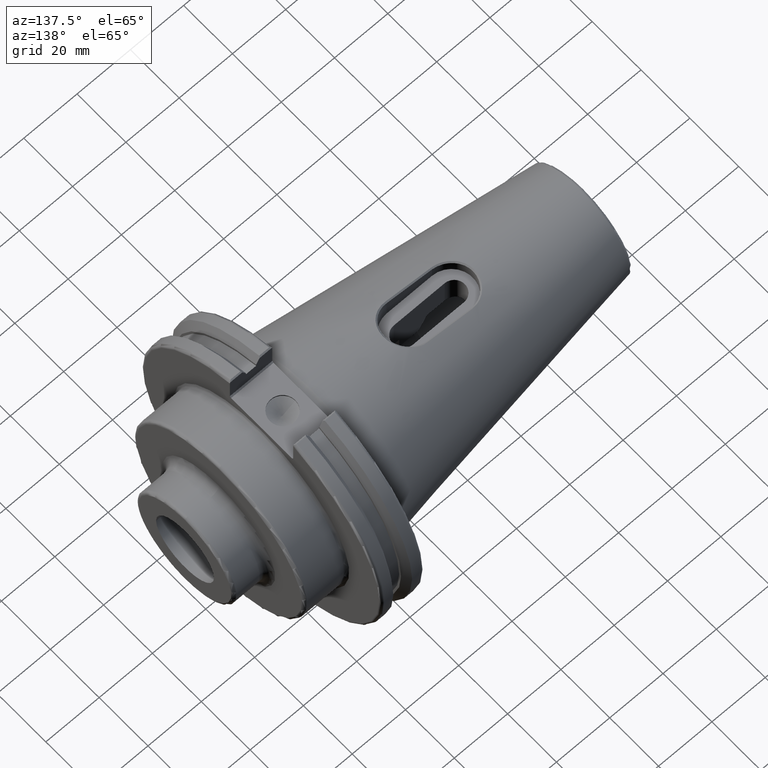
[diagram: clean part render]
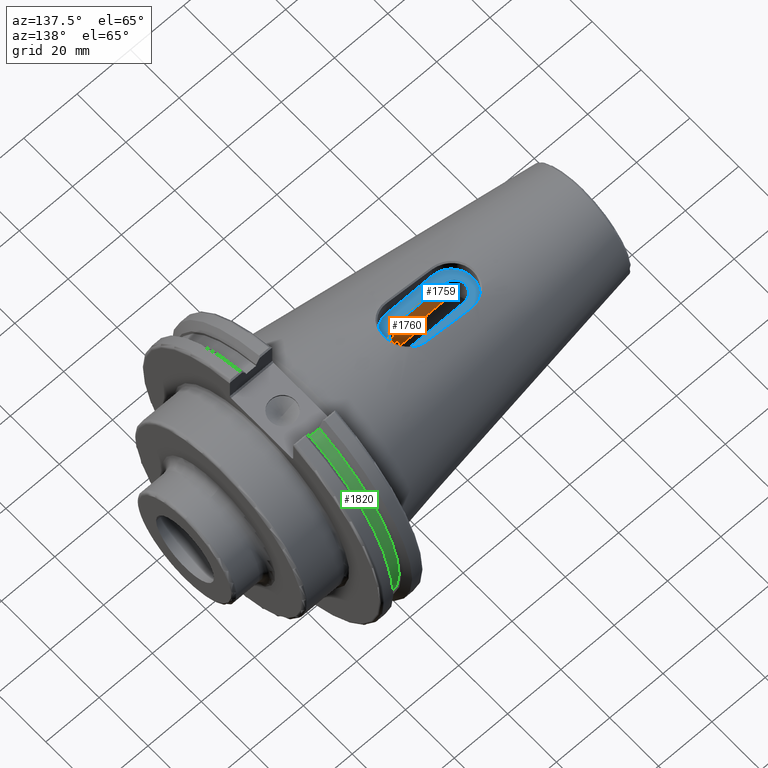
[diagram: same view with three faces highlighted in distinct colors, each labeled with its STEP entity id]
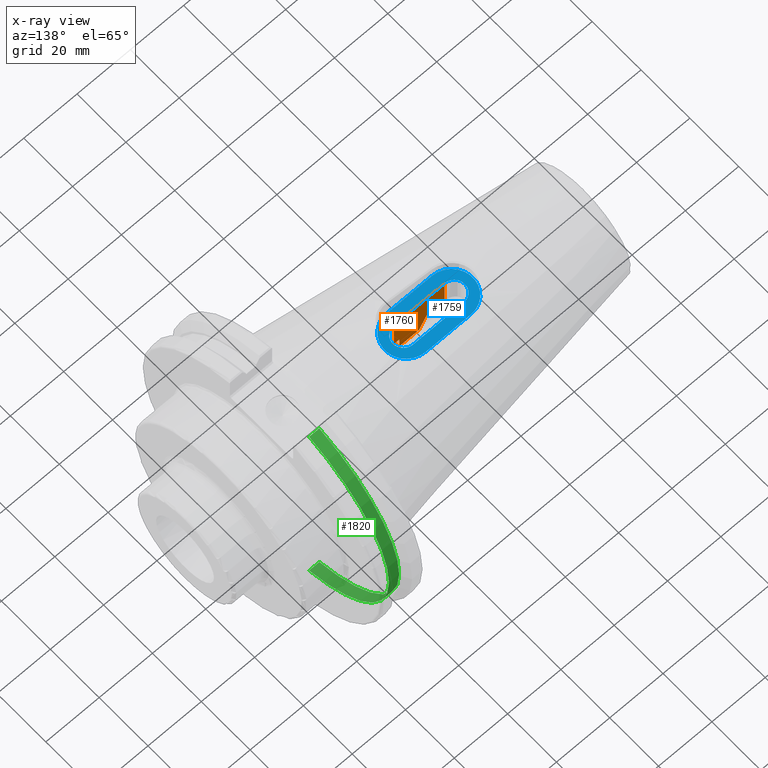
[diagram: x-ray of the same camera — body ghosted, the three highlighted faces saturated]
A machine part, auxiliary view with three faces highlighted in distinct colors.
The next image is the same camera in x-ray (body ghosted, the three faces saturated) — at least one of them is partly hidden behind the body in this view.
Their STEP definitions:

[orange] entity #1760 — the highlighted planar face has unit normal (0, -1, 0).
#26=(
BOUNDED_CURVE()
B_SPLINE_CURVE(2,(#3309,#3310,#3311),.UNSPECIFIED.,.F.,.F.)
B_SPLINE_CURVE_WITH_KNOTS((3,3),(0.,0.611116036590634),.UNSPECIFIED.)
CURVE()
GEOMETRIC_REPRESENTATION_ITEM()
RATIONAL_B_SPLINE_CURVE((1.,1.05317114288805,1.))
REPRESENTATION_ITEM('')
);
#169=PLANE('',#1879);
#232=FACE_OUTER_BOUND('',#337,.T.);
#337=EDGE_LOOP('',(#1324,#1325,#1326,#1327,#1328,#1329,#1330,#1331));
#510=LINE('',#3297,#635);
#511=LINE('',#3301,#636);
#512=LINE('',#3303,#637);
#513=LINE('',#3305,#638);
#514=LINE('',#3307,#639);
#515=LINE('',#3313,#640);
#516=LINE('',#3314,#641);
#635=VECTOR('',#2099,10.);
#636=VECTOR('',#2104,10.);
#637=VECTOR('',#2105,10.);
#638=VECTOR('',#2106,10.);
#639=VECTOR('',#2107,10.);
#640=VECTOR('',#2108,10.);
#641=VECTOR('',#2109,10.);
#777=VERTEX_POINT('',#3294);
#778=VERTEX_POINT('',#3296);
#779=VERTEX_POINT('',#3300);
#780=VERTEX_POINT('',#3302);
#781=VERTEX_POINT('',#3304);
#782=VERTEX_POINT('',#3306);
#783=VERTEX_POINT('',#3308);
#784=VERTEX_POINT('',#3312);
#982=EDGE_CURVE('',#778,#777,#510,.T.);
#984=EDGE_CURVE('',#779,#777,#511,.T.);
#985=EDGE_CURVE('',#780,#779,#512,.T.);
#986=EDGE_CURVE('',#781,#780,#513,.T.);
#987=EDGE_CURVE('',#782,#781,#514,.T.);
#988=EDGE_CURVE('',#783,#782,#26,.T.);
#989=EDGE_CURVE('',#784,#783,#515,.T.);
#990=EDGE_CURVE('',#784,#778,#516,.T.);
#1324=ORIENTED_EDGE('',*,*,#982,.T.);
#1325=ORIENTED_EDGE('',*,*,#984,.F.);
#1326=ORIENTED_EDGE('',*,*,#985,.F.);
#1327=ORIENTED_EDGE('',*,*,#986,.F.);
#1328=ORIENTED_EDGE('',*,*,#987,.F.);
#1329=ORIENTED_EDGE('',*,*,#988,.F.);
#1330=ORIENTED_EDGE('',*,*,#989,.F.);
#1331=ORIENTED_EDGE('',*,*,#990,.T.);
#1760=ADVANCED_FACE('',(#232),#169,.F.);
#1879=AXIS2_PLACEMENT_3D('',#3299,#2102,#2103);
#2099=DIRECTION('',(1.,3.19697729604103E-16,0.));
#2102=DIRECTION('center_axis',(3.19697729604103E-16,-1.,0.));
#2103=DIRECTION('ref_axis',(1.,3.19697729604103E-16,0.));
#2104=DIRECTION('',(0.,0.,1.));
#2105=DIRECTION('',(1.,0.,0.));
#2106=DIRECTION('',(0.,0.,1.));
#2107=DIRECTION('',(1.,0.,0.));
#2108=DIRECTION('',(1.,0.,0.));
#2109=DIRECTION('',(0.,0.,1.));
#3294=CARTESIAN_POINT('',(-34.2,-3.95,21.4987));
#3296=CARTESIAN_POINT('',(-53.3,-3.95,21.4987));
#3297=CARTESIAN_POINT('',(-48.525,-3.95,21.4987));
#3299=CARTESIAN_POINT('Origin',(-53.3,-3.95,0.));
#3300=CARTESIAN_POINT('',(-34.2,-3.95,9.29556345790829));
#3301=CARTESIAN_POINT('',(-34.2,-3.95,0.));
#3302=CARTESIAN_POINT('',(-36.25,-3.95,9.29556345790829));
#3303=CARTESIAN_POINT('',(-30.25,-3.95,9.2955634579083));
#3304=CARTESIAN_POINT('',(-36.25,-3.95,4.84355241532494));
#3305=CARTESIAN_POINT('',(-36.25,-3.95,0.));
#3306=CARTESIAN_POINT('',(-43.754624538595,-3.95,4.84355241532493));
#3307=CARTESIAN_POINT('',(100.784982190534,-3.94999999999995,4.84355241532497));
#3308=CARTESIAN_POINT('',(-46.6,-3.95,10.2507907134035));
#3309=CARTESIAN_POINT('Ctrl Pts',(-46.6,-3.95,10.2507907134035));
#3310=CARTESIAN_POINT('Ctrl Pts',(-44.6676636202602,-3.95,6.80434492862548));
#3311=CARTESIAN_POINT('Ctrl Pts',(-43.754624538595,-3.95,4.84355241532492));
#3312=CARTESIAN_POINT('',(-53.3,-3.95,10.2507907134035));
#3313=CARTESIAN_POINT('',(-74.1,-3.95000000000001,10.2507907134035));
#3314=CARTESIAN_POINT('',(-53.3,-3.95,0.));

[blue] entity #1759 — the highlighted planar face has unit normal (0, 0, 1).
#48=FACE_BOUND('',#336,.T.);
#74=CIRCLE('',#1872,8.);
#75=CIRCLE('',#1875,8.);
#76=CIRCLE('',#1877,3.95);
#77=CIRCLE('',#1878,3.95000000000001);
#168=PLANE('',#1876);
#231=FACE_OUTER_BOUND('',#335,.T.);
#335=EDGE_LOOP('',(#1316,#1317,#1318,#1319));
#336=EDGE_LOOP('',(#1320,#1321,#1322,#1323));
#504=LINE('',#3278,#629);
#508=LINE('',#3287,#633);
#509=LINE('',#3293,#634);
#510=LINE('',#3297,#635);
#629=VECTOR('',#2079,10.);
#633=VECTOR('',#2089,10.);
#634=VECTOR('',#2096,10.);
#635=VECTOR('',#2099,10.);
#771=VERTEX_POINT('',#3275);
#772=VERTEX_POINT('',#3277);
#773=VERTEX_POINT('',#3281);
#774=VERTEX_POINT('',#3285);
#775=VERTEX_POINT('',#3291);
#776=VERTEX_POINT('',#3292);
#777=VERTEX_POINT('',#3294);
#778=VERTEX_POINT('',#3296);
#973=EDGE_CURVE('',#772,#771,#504,.T.);
#976=EDGE_CURVE('',#771,#773,#74,.T.);
#978=EDGE_CURVE('',#773,#774,#508,.T.);
#979=EDGE_CURVE('',#774,#772,#75,.T.);
#980=EDGE_CURVE('',#775,#776,#509,.T.);
#981=EDGE_CURVE('',#777,#775,#76,.T.);
#982=EDGE_CURVE('',#778,#777,#510,.T.);
#983=EDGE_CURVE('',#776,#778,#77,.T.);
#1316=ORIENTED_EDGE('',*,*,#973,.T.);
#1317=ORIENTED_EDGE('',*,*,#976,.T.);
#1318=ORIENTED_EDGE('',*,*,#978,.T.);
#1319=ORIENTED_EDGE('',*,*,#979,.T.);
#1320=ORIENTED_EDGE('',*,*,#980,.F.);
#1321=ORIENTED_EDGE('',*,*,#981,.F.);
#1322=ORIENTED_EDGE('',*,*,#982,.F.);
#1323=ORIENTED_EDGE('',*,*,#983,.F.);
#1759=ADVANCED_FACE('',(#231,#48),#168,.T.);
#1872=AXIS2_PLACEMENT_3D('',#3283,#2084,#2085);
#1875=AXIS2_PLACEMENT_3D('',#3289,#2092,#2093);
#1876=AXIS2_PLACEMENT_3D('',#3290,#2094,#2095);
#1877=AXIS2_PLACEMENT_3D('',#3295,#2097,#2098);
#1878=AXIS2_PLACEMENT_3D('',#3298,#2100,#2101);
#2079=DIRECTION('',(-1.,0.,0.));
#2084=DIRECTION('center_axis',(0.,0.,1.));
#2085=DIRECTION('ref_axis',(0.,1.,0.));
#2089=DIRECTION('',(1.,2.61228946970625E-16,0.));
#2092=DIRECTION('center_axis',(0.,0.,1.));
#2093=DIRECTION('ref_axis',(0.,-1.,0.));
#2094=DIRECTION('center_axis',(0.,0.,1.));
#2095=DIRECTION('ref_axis',(1.,0.,0.));
#2096=DIRECTION('',(-1.,4.3595144946014E-16,0.));
#2097=DIRECTION('center_axis',(0.,0.,1.));
#2098=DIRECTION('ref_axis',(-1.12427648063307E-15,-1.,0.));
#2099=DIRECTION('',(1.,3.19697729604103E-16,0.));
#2100=DIRECTION('center_axis',(0.,0.,1.));
#2101=DIRECTION('ref_axis',(0.,1.,0.));
#3275=CARTESIAN_POINT('',(-52.25,8.,21.4987));
#3277=CARTESIAN_POINT('',(-35.25,8.,21.4987));
#3278=CARTESIAN_POINT('',(-35.25,8.,21.4987));
#3281=CARTESIAN_POINT('',(-52.25,-8.00000000000001,21.4987));
#3283=CARTESIAN_POINT('Origin',(-52.25,-1.95788742704429E-15,21.4987));
#3285=CARTESIAN_POINT('',(-35.25,-8.,21.4987));
#3287=CARTESIAN_POINT('',(-52.25,-8.00000000000001,21.4987));
#3289=CARTESIAN_POINT('Origin',(-35.25,1.24012131506206E-16,21.4987));
#3290=CARTESIAN_POINT('Origin',(-43.75,-2.22044604925031E-15,21.4987));
#3291=CARTESIAN_POINT('',(-34.2,3.95,21.4987));
#3292=CARTESIAN_POINT('',(-53.3,3.95000000000001,21.4987));
#3293=CARTESIAN_POINT('',(-38.975,3.95,21.4987));
#3294=CARTESIAN_POINT('',(-34.2,-3.95,21.4987));
#3295=CARTESIAN_POINT('Origin',(-34.2,3.83586916470883E-15,21.4987));
#3296=CARTESIAN_POINT('',(-53.3,-3.95,21.4987));
#3297=CARTESIAN_POINT('',(-48.525,-3.95,21.4987));
#3298=CARTESIAN_POINT('Origin',(-53.3,3.04349897815399E-15,21.4987));

[green] entity #1820 — the highlighted cylindrical surface (partial cylindrical patch) has radius 45.6435 mm, axis along (1, 0, 0).
#131=CIRCLE('',#1992,45.6435);
#132=CIRCLE('',#1994,45.6435);
#159=CYLINDRICAL_SURFACE('',#1993,45.6435);
#292=FACE_OUTER_BOUND('',#402,.T.);
#402=EDGE_LOOP('',(#1664,#1665,#1666,#1667));
#560=LINE('',#3611,#685);
#584=LINE('',#3797,#709);
#685=VECTOR('',#2291,10.);
#709=VECTOR('',#2363,10.);
#853=VERTEX_POINT('',#3608);
#854=VERTEX_POINT('',#3610);
#886=VERTEX_POINT('',#3794);
#887=VERTEX_POINT('',#3796);
#1088=EDGE_CURVE('',#854,#853,#560,.T.);
#1139=EDGE_CURVE('',#887,#886,#584,.T.);
#1160=EDGE_CURVE('',#854,#886,#131,.T.);
#1161=EDGE_CURVE('',#853,#887,#132,.T.);
#1664=ORIENTED_EDGE('',*,*,#1088,.T.);
#1665=ORIENTED_EDGE('',*,*,#1161,.T.);
#1666=ORIENTED_EDGE('',*,*,#1139,.T.);
#1667=ORIENTED_EDGE('',*,*,#1160,.F.);
#1820=ADVANCED_FACE('',(#292),#159,.T.);
#1992=AXIS2_PLACEMENT_3D('',#3849,#2410,#2411);
#1993=AXIS2_PLACEMENT_3D('',#3850,#2412,#2413);
#1994=AXIS2_PLACEMENT_3D('',#3851,#2414,#2415);
#2291=DIRECTION('',(-1.,0.,0.));
#2363=DIRECTION('',(1.,0.,0.));
#2410=DIRECTION('center_axis',(1.,0.,0.));
#2411=DIRECTION('ref_axis',(0.,0.,-1.));
#2412=DIRECTION('center_axis',(1.,0.,0.));
#2413=DIRECTION('ref_axis',(0.,1.,0.));
#2414=DIRECTION('center_axis',(1.,0.,0.));
#2415=DIRECTION('ref_axis',(0.,0.,-1.));
#3608=CARTESIAN_POINT('',(9.2191,12.95,-43.7678716897452));
#3610=CARTESIAN_POINT('',(13.0491,12.95,-43.7678716897452));
#3611=CARTESIAN_POINT('',(11.1341,12.95,-43.7678716897452));
#3794=CARTESIAN_POINT('',(13.0491,12.95,43.7678716897452));
#3796=CARTESIAN_POINT('',(9.2191,12.95,43.7678716897452));
#3797=CARTESIAN_POINT('',(11.1341,12.95,43.7678716897452));
#3849=CARTESIAN_POINT('Origin',(13.0491,0.,0.));
#3850=CARTESIAN_POINT('Origin',(11.1341,0.,0.));
#3851=CARTESIAN_POINT('Origin',(9.2191,0.,0.));